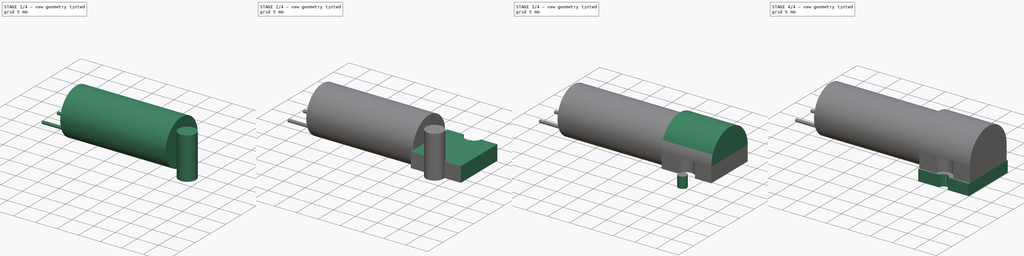
[diagram: build sequence overview — one tinted view per stage of 4, left to right]
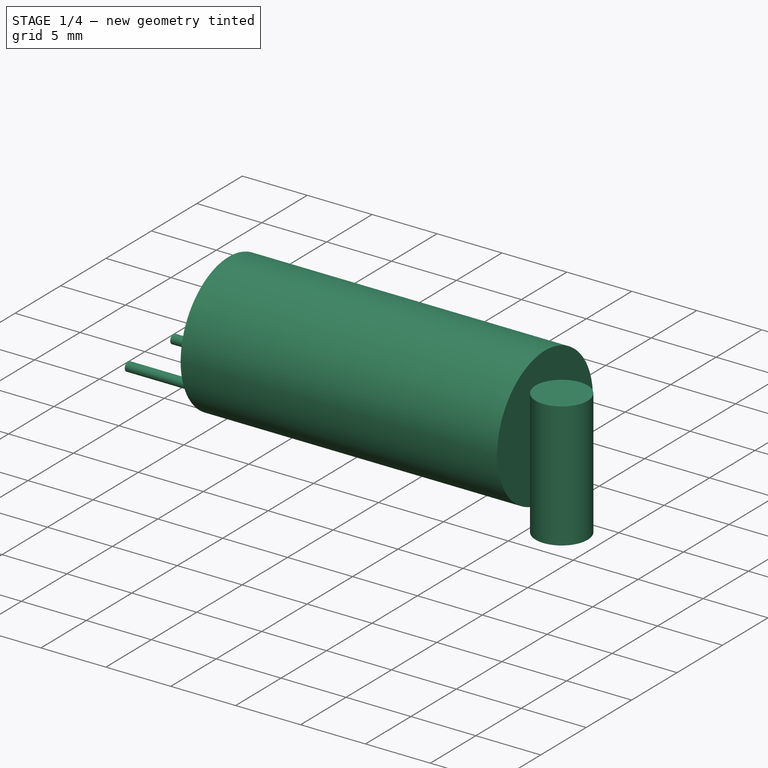
[diagram: stage 1 of 4 — iso view after this stage's code; geometry added in this stage tinted green]
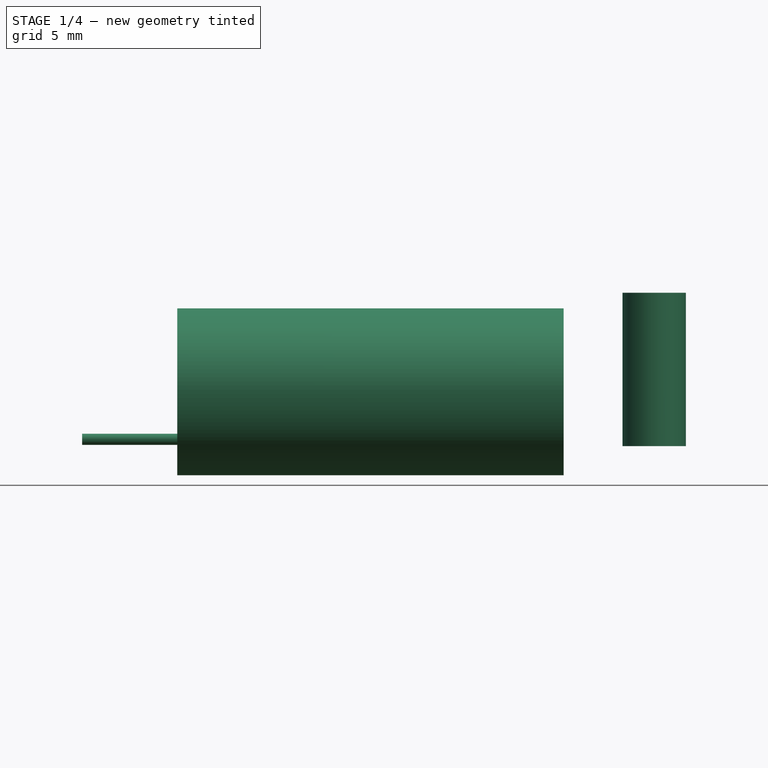
[diagram: stage 1 of 4 — front view after this stage's code; geometry added in this stage tinted green]
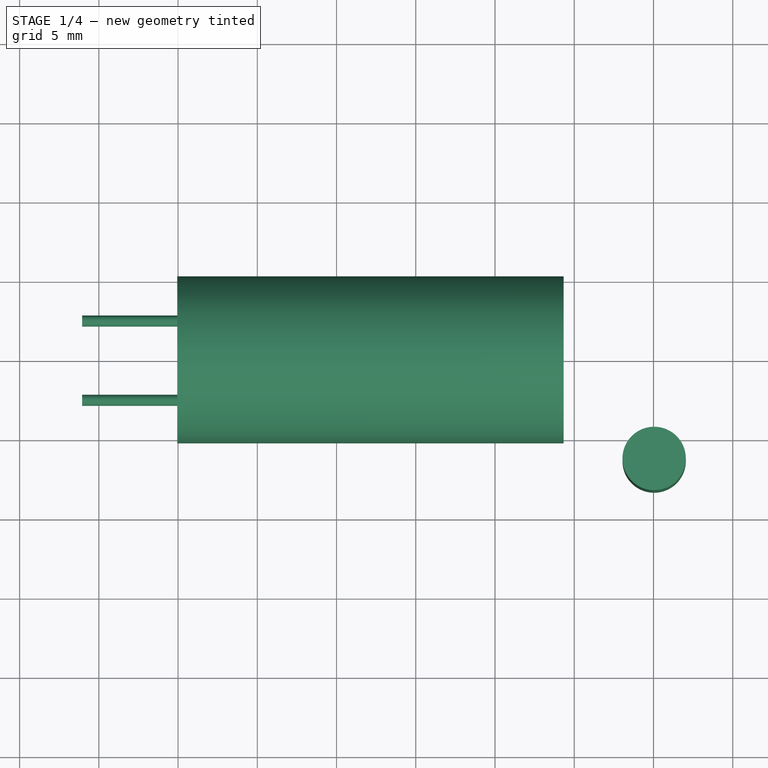
[diagram: stage 1 of 4 — top view after this stage's code; geometry added in this stage tinted green]
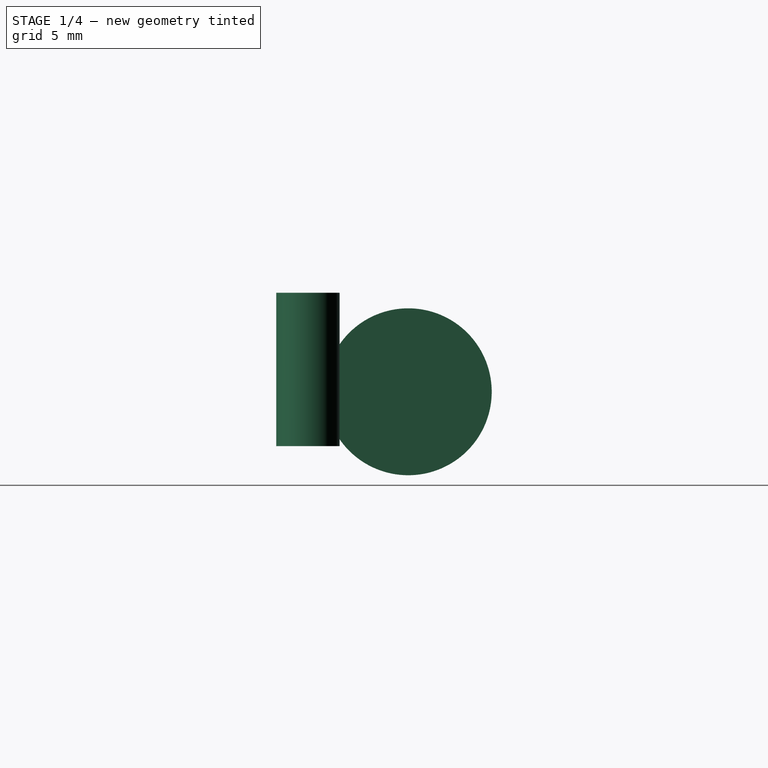
[diagram: stage 1 of 4 — right view after this stage's code; geometry added in this stage tinted green]
FCSTD DOCUMENT  (FreeCAD 0.18R16146 (Git))
Label: valve
Comment: # 2020-08-04 16:29:51: read from <userpath>/repositories/sussex_neuro/Olfactometer/hardware/mechanics/from_raiser_et_al/valve.ipt
License: All rights reserved
LicenseURL: http://en.wikipedia.org/wiki/All_rights_reserved
objects: Sketcher::SketchObject×18, Part::Extrusion×9, Part::Cut×4, Spreadsheet::Sheet×1
note: 31 computed .brp shape members not serialized (recipe doc carries the construction recipe); baked Part::Feature solids carry a one-line shape summary decoded from their .brp

FEATURE [Sketcher::SketchObject] Sketch17
  Placement = pos=(-5.67296,-6.32738,2.54) rot=(0,0,1;0rad)
  sketch-geometry (2):
    g0: ArcOfCircle [constr] CenterX=5.715 CenterY=0 CenterZ=0 NormalX=0 NormalY=0 NormalZ=1 AngleXU=0 Radius=1 StartAngle=2.77613 EndAngle=3.14159
    g1: Circle CenterX=5.715 CenterY=0 CenterZ=0 NormalX=0 NormalY=0 NormalZ=1 AngleXU=0 Radius=2
FEATURE [Sketcher::SketchObject] Sketch17_bp
  Placement = pos=(-5.67296,-6.32738,2.54) rot=(0,0,1;0rad)
  sketch-geometry (1):
    g0: Circle CenterX=5.715 CenterY=0 CenterZ=0 NormalX=0 NormalY=0 NormalZ=1 AngleXU=0 Radius=2
FEATURE [Part::Extrusion] Extrusion10_Cut
  Base = -> Sketch17_bp
  Dir = (0,0,1)
  DirMode = 0
  FaceMakerClass = Part::FaceMakerBullseye
  LengthFwd = 9.68
  LengthRev = 0
  Solid = true
  Symmetric = false
  expr: LengthFwd = Parameters.d46_
  expr: TaperAngle = Parameters.d47_
FEATURE [Sketcher::SketchObject] Sketch18
  Placement = pos=(-5.67296,-6.32738,0) rot=(0,-1,0;1.5708rad)
  sketch-geometry (2):
    g0: ArcOfCircle [constr] CenterX=5.97 CenterY=6.32738 CenterZ=0 NormalX=0 NormalY=0 NormalZ=1 AngleXU=0 Radius=5.97 StartAngle=4.71239 EndAngle=7.85398
    g1: Circle CenterX=5.97 CenterY=6.32738 CenterZ=0 NormalX=0 NormalY=0 NormalZ=1 AngleXU=0 Radius=5.26743
FEATURE [Sketcher::SketchObject] Sketch18_bp
  Placement = pos=(-5.67296,-6.32738,0) rot=(0,-1,0;1.5708rad)
  sketch-geometry (1):
    g0: Circle CenterX=5.97 CenterY=6.32738 CenterZ=0 NormalX=0 NormalY=0 NormalZ=1 AngleXU=0 Radius=5.26743
FEATURE [Part::Extrusion] Extrusion11
  Base = -> Sketch18_bp
  Dir = (-1,0,0)
  DirMode = 0
  FaceMakerClass = Part::FaceMakerBullseye
  LengthFwd = 24.38
  LengthRev = 0
  Solid = true
  Symmetric = false
  expr: LengthFwd = Parameters.d48_
  expr: TaperAngle = Parameters.d49_
FEATURE [Sketcher::SketchObject] Sketch20
  Placement = pos=(-30.053,0,5.97) rot=(0,-1,0;1.5708rad)
  sketch-geometry (4):
    g0: Circle [constr] CenterX=0 CenterY=0 CenterZ=0 NormalX=0 NormalY=0 NormalZ=1 AngleXU=0 Radius=5.26743
    g1: Circle CenterX=-3 CenterY=2.5 CenterZ=0 NormalX=0 NormalY=0 NormalZ=1 AngleXU=0 Radius=0.35
    g2: LineSegment StartX=-10.3331 StartY=-1.1e-15 StartZ=0 EndX=11.6228 EndY=-1.1e-15 EndZ=0
    g3: Circle CenterX=-3 CenterY=-2.5 CenterZ=0 NormalX=0 NormalY=0 NormalZ=1 AngleXU=0 Radius=0.35
  constraints (1):
    c: Horizontal(g2)
FEATURE [Sketcher::SketchObject] Sketch20_bp
  Placement = pos=(-30.053,0,5.97) rot=(0,-1,0;1.5708rad)
  sketch-geometry (2):
    g0: Circle CenterX=-3 CenterY=2.5 CenterZ=0 NormalX=0 NormalY=0 NormalZ=1 AngleXU=0 Radius=0.35
    g1: Circle CenterX=-3 CenterY=-2.5 CenterZ=0 NormalX=0 NormalY=0 NormalZ=1 AngleXU=0 Radius=0.35
FEATURE [Part::Extrusion] Extrusion12
  Base = -> Sketch20_bp
  Dir = (-1,0,0)
  DirMode = 0
  FaceMakerClass = Part::FaceMakerBullseye
  LengthFwd = 6
  LengthRev = 0
  Solid = true
  Symmetric = false
  expr: LengthFwd = Parameters.d53_
  expr: TaperAngle = Parameters.d54_
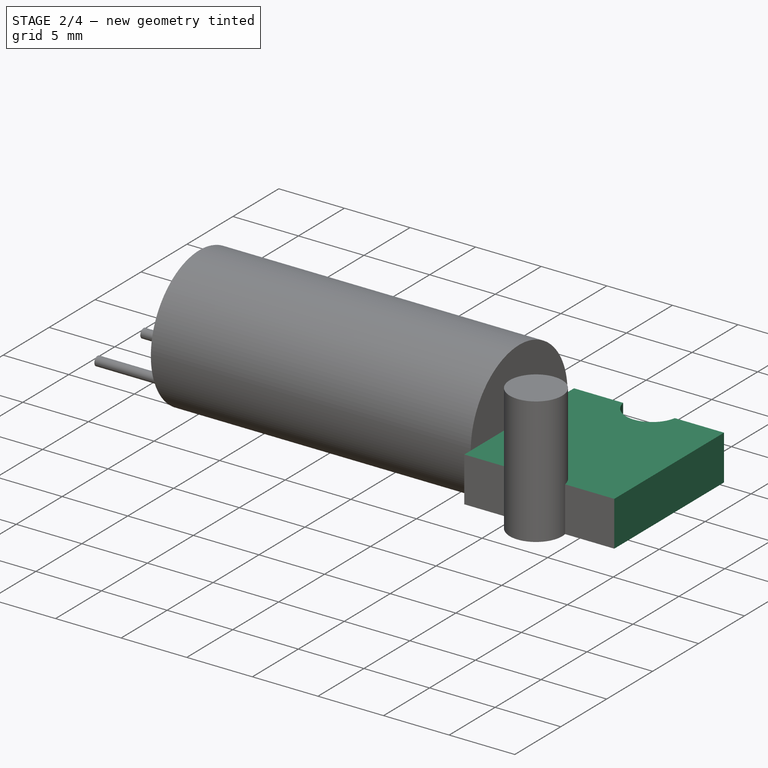
[diagram: stage 2 of 4 — iso view after this stage's code; geometry added in this stage tinted green]
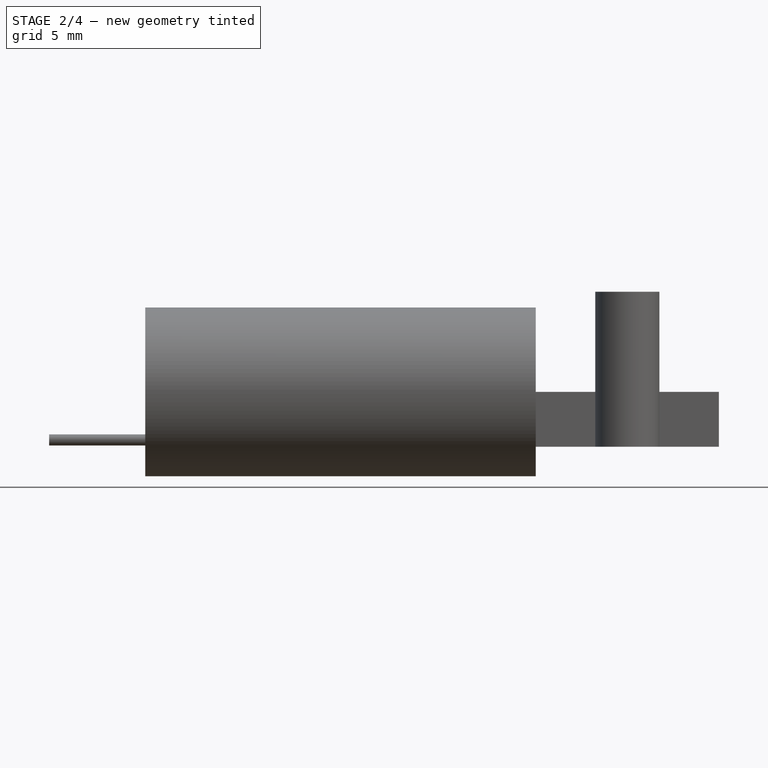
[diagram: stage 2 of 4 — front view after this stage's code; geometry added in this stage tinted green]
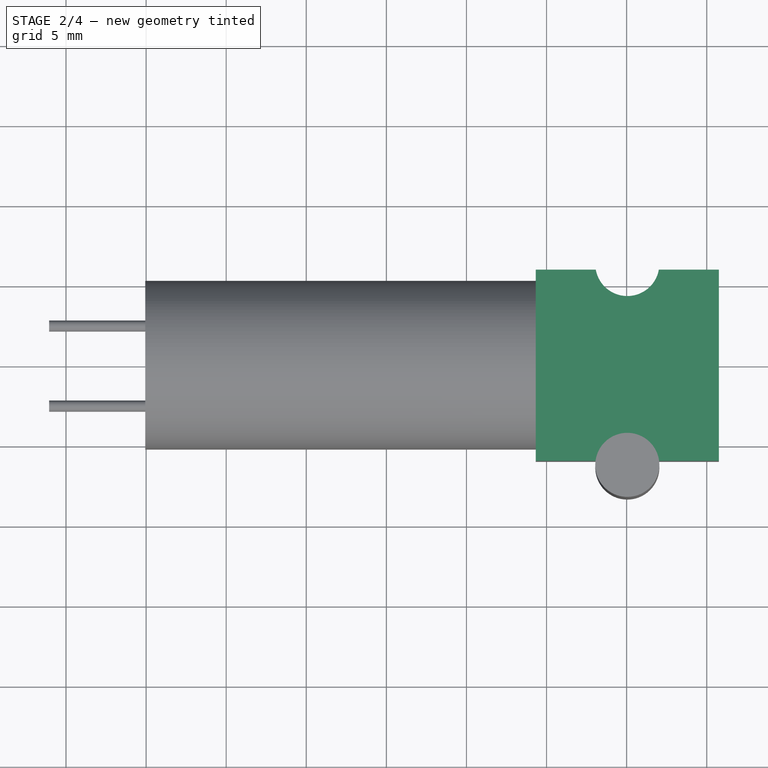
[diagram: stage 2 of 4 — top view after this stage's code; geometry added in this stage tinted green]
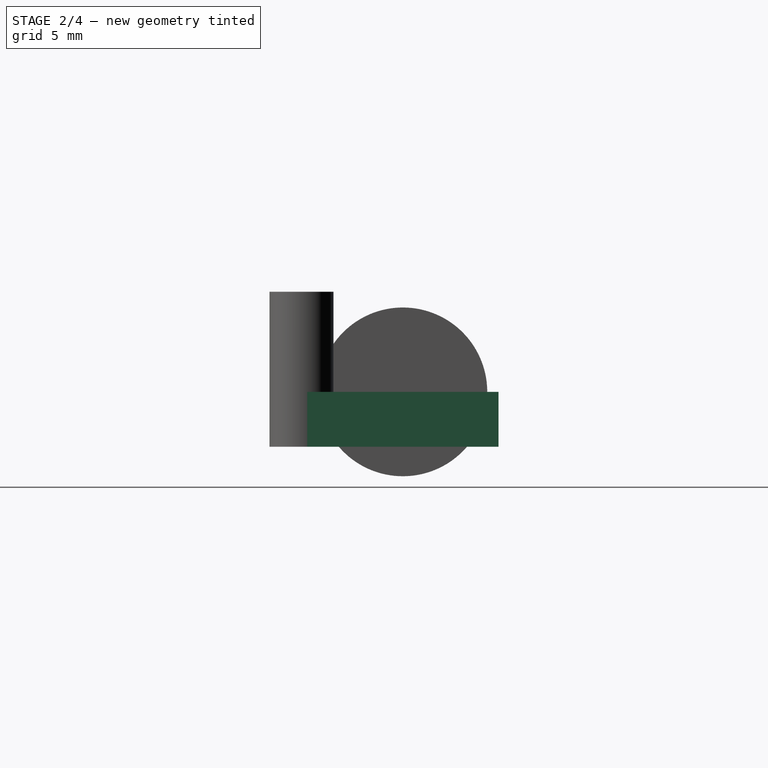
[diagram: stage 2 of 4 — right view after this stage's code; geometry added in this stage tinted green]
FEATURE [Sketcher::SketchObject] Sketch15
  Placement = pos=(-5.67296,-5.97,5.97) rot=(0,1,0;3.14159rad)
  sketch-geometry (4):
    g0: LineSegment StartX=0 StartY=11.94 StartZ=0 EndX=-11.43 EndY=11.94 EndZ=0
    g1: LineSegment StartX=-11.43 StartY=11.94 StartZ=0 EndX=-11.43 EndY=0 EndZ=0
    g2: LineSegment StartX=-11.43 StartY=0 StartZ=0 EndX=0 EndY=0 EndZ=0
    g3: LineSegment StartX=0 StartY=0 StartZ=0 EndX=0 EndY=11.94 EndZ=0
  constraints (2):
    c: Coincident(g-1,g2)
    c: Coincident(g-1,g3)
FEATURE [Sketcher::SketchObject] Sketch15_bp
  Placement = pos=(-5.67296,-5.97,5.97) rot=(0,1,0;3.14159rad)
  sketch-geometry (4):
    g0: LineSegment StartX=0 StartY=11.94 StartZ=0 EndX=-11.43 EndY=11.94 EndZ=0
    g1: LineSegment StartX=-11.43 StartY=11.94 StartZ=0 EndX=-11.43 EndY=0 EndZ=0
    g2: LineSegment StartX=-11.43 StartY=0 StartZ=0 EndX=0 EndY=0 EndZ=0
    g3: LineSegment StartX=0 StartY=0 StartZ=0 EndX=0 EndY=11.94 EndZ=0
FEATURE [Part::Extrusion] Extrusion8
  Base = -> Sketch15_bp
  Dir = (0,0,-1)
  DirMode = 0
  FaceMakerClass = Part::FaceMakerBullseye
  LengthFwd = 3.43
  LengthRev = 0
  Solid = true
  Symmetric = false
  expr: LengthFwd = Parameters.d40_
  expr: TaperAngle = Parameters.d41_
FEATURE [Sketcher::SketchObject] Sketch16
  Placement = pos=(-5.67296,6.32262,2.54) rot=(0,0,1;0rad)
  sketch-geometry (2):
    g0: ArcOfCircle [constr] CenterX=5.715 CenterY=0 CenterZ=0 NormalX=0 NormalY=0 NormalZ=1 AngleXU=0 Radius=1 StartAngle=3.14159 EndAngle=3.50196
    g1: Circle CenterX=5.715 CenterY=0 CenterZ=0 NormalX=0 NormalY=0 NormalZ=1 AngleXU=0 Radius=2
FEATURE [Sketcher::SketchObject] Sketch16_bp
  Placement = pos=(-5.67296,6.32262,2.54) rot=(0,0,1;0rad)
  sketch-geometry (1):
    g0: Circle CenterX=5.715 CenterY=0 CenterZ=0 NormalX=0 NormalY=0 NormalZ=1 AngleXU=0 Radius=2
FEATURE [Part::Extrusion] Extrusion9_Cut
  Base = -> Sketch16_bp
  Dir = (0,0,1)
  DirMode = 0
  FaceMakerClass = Part::FaceMakerBullseye
  LengthFwd = 9.68
  LengthRev = 0
  Solid = true
  Symmetric = false
  expr: LengthFwd = Parameters.d43_
  expr: TaperAngle = Parameters.d44_
FEATURE [Part::Cut] Extrusion9
  Base = -> Extrusion8
  Tool = -> Extrusion9_Cut
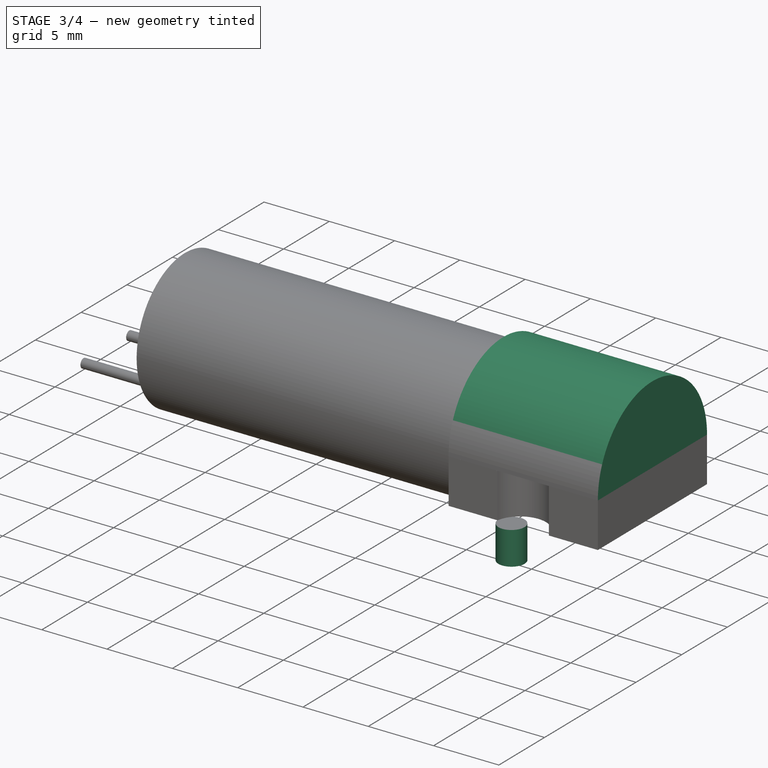
[diagram: stage 3 of 4 — iso view after this stage's code; geometry added in this stage tinted green]
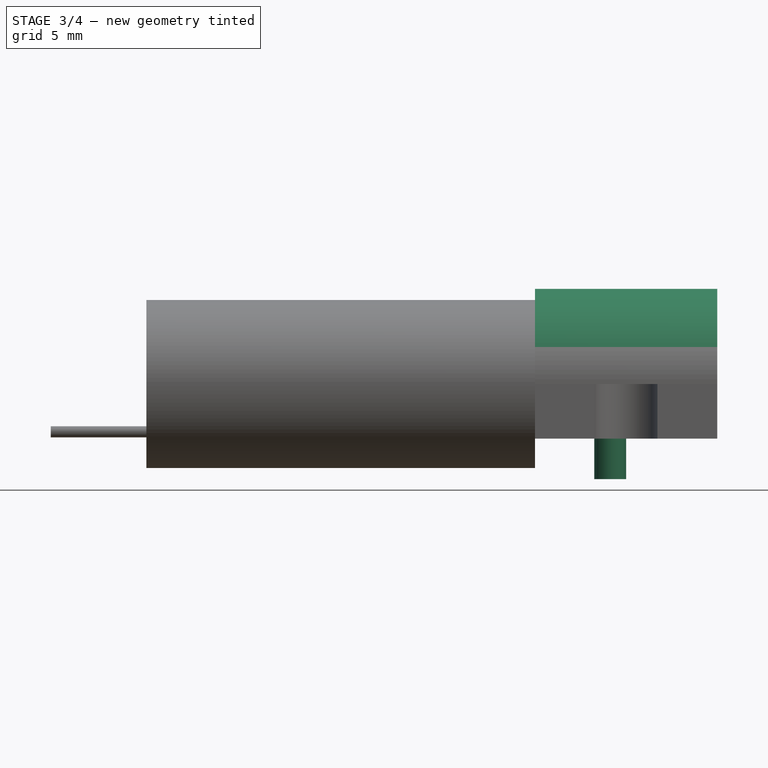
[diagram: stage 3 of 4 — front view after this stage's code; geometry added in this stage tinted green]
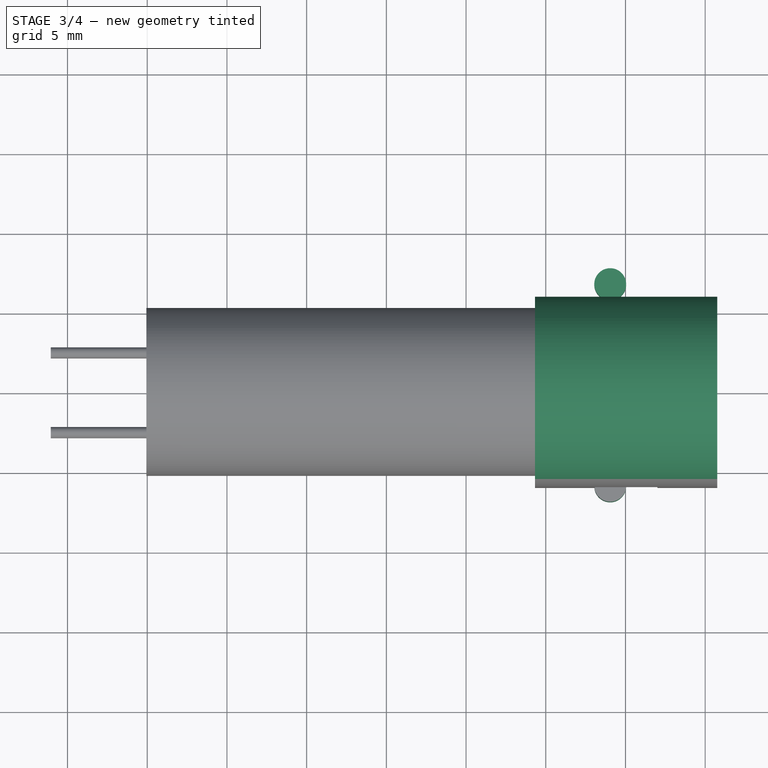
[diagram: stage 3 of 4 — top view after this stage's code; geometry added in this stage tinted green]
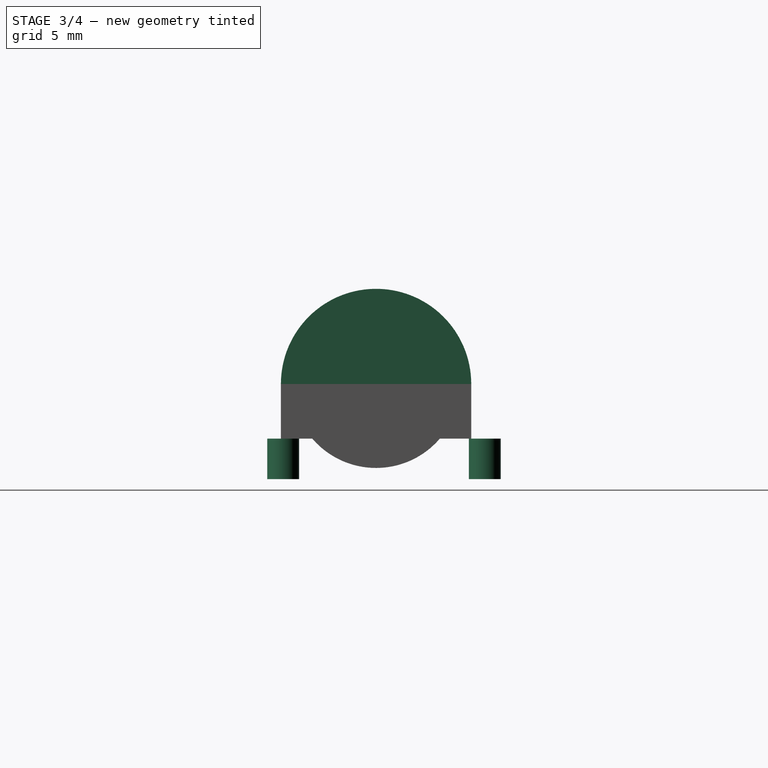
[diagram: stage 3 of 4 — right view after this stage's code; geometry added in this stage tinted green]
FEATURE [Sketcher::SketchObject] Sketch6
  Placement = pos=(0,0,2.54) rot=(0,0,1;0rad)
  sketch-geometry (2):
    g0: LineSegment [constr] StartX=4.75704 StartY=6.82262 StartZ=0 EndX=-6.67296 EndY=6.82262 EndZ=0
    g1: Circle CenterX=-0.957956 CenterY=6.82262 CenterZ=0 NormalX=0 NormalY=0 NormalZ=1 AngleXU=0 Radius=1
  constraints (1):
    c: Radius(g1) = 1  'd24'
FEATURE [Sketcher::SketchObject] Sketch6_bp
  Placement = pos=(0,0,2.54) rot=(0,0,1;0rad)
  sketch-geometry (1):
    g0: Circle CenterX=-0.957956 CenterY=6.82262 CenterZ=0 NormalX=0 NormalY=0 NormalZ=1 AngleXU=0 Radius=1
FEATURE [Part::Extrusion] Extrusion5_Cut
  Base = -> Sketch6_bp
  Dir = (0,0,1)
  DirMode = 0
  FaceMakerClass = Part::FaceMakerBullseye
  LengthFwd = 2.54
  LengthRev = 0
  Reversed = true
  Solid = true
  Symmetric = false
  expr: LengthFwd = Parameters.d25_
  expr: TaperAngle = Parameters.d26_
FEATURE [Sketcher::SketchObject] Sketch7
  Placement = pos=(0,0,2.54) rot=(0,0,1;0rad)
  sketch-geometry (2):
    g0: LineSegment [constr] StartX=-6.67296 StartY=-5.82738 StartZ=0 EndX=4.75704 EndY=-5.82738 EndZ=0
    g1: Circle CenterX=-0.957956 CenterY=-5.82738 CenterZ=0 NormalX=0 NormalY=0 NormalZ=1 AngleXU=0 Radius=1
FEATURE [Sketcher::SketchObject] Sketch7_bp
  Placement = pos=(0,0,2.54) rot=(0,0,1;0rad)
  sketch-geometry (1):
    g0: Circle CenterX=-0.957956 CenterY=-5.82738 CenterZ=0 NormalX=0 NormalY=0 NormalZ=1 AngleXU=0 Radius=1
FEATURE [Part::Extrusion] Extrusion6_Cut
  Base = -> Sketch7_bp
  Dir = (0,0,1)
  DirMode = 0
  FaceMakerClass = Part::FaceMakerBullseye
  LengthFwd = 2.54
  LengthRev = 0
  Reversed = true
  Solid = true
  Symmetric = false
  expr: LengthFwd = Parameters.d28_
  expr: TaperAngle = Parameters.d29_
FEATURE [Sketcher::SketchObject] Sketch14
  Placement = pos=(-5.67296,-6.32738,0) rot=(0,-1,0;1.5708rad)
  expr: Constraints.d37 = Parameters.d37_
  sketch-geometry (2):
    g0: ArcOfCircle CenterX=5.97 CenterY=6.32738 CenterZ=0 NormalX=0 NormalY=0 NormalZ=1 AngleXU=0 Radius=5.97 StartAngle=4.71239 EndAngle=7.85398
    g1: LineSegment StartX=5.97 StartY=12.2974 StartZ=0 EndX=5.97 EndY=0.35738 EndZ=0
  constraints (2):
    c: Vertical(g1)
    c: Radius(g0) = 5.97  'd37'
FEATURE [Sketcher::SketchObject] Sketch14_bp
  Placement = pos=(-5.67296,-6.32738,0) rot=(0,-1,0;1.5708rad)
  sketch-geometry (2):
    g0: ArcOfCircle CenterX=5.97 CenterY=6.32738 CenterZ=0 NormalX=0 NormalY=0 NormalZ=1 AngleXU=0 Radius=5.97 StartAngle=4.71239 EndAngle=7.85398
    g1: LineSegment StartX=5.97 StartY=12.2974 StartZ=0 EndX=5.97 EndY=0.35738 EndZ=0
FEATURE [Part::Extrusion] Extrusion7
  Base = -> Sketch14_bp
  Dir = (-1,0,0)
  DirMode = 0
  FaceMakerClass = Part::FaceMakerBullseye
  LengthFwd = 11.43
  LengthRev = 0
  Reversed = true
  Solid = true
  Symmetric = false
  expr: LengthFwd = Parameters.d38_
  expr: TaperAngle = Parameters.d39_
FEATURE [Part::Cut] Extrusion10
  Base = -> Extrusion9
  Tool = -> Extrusion10_Cut
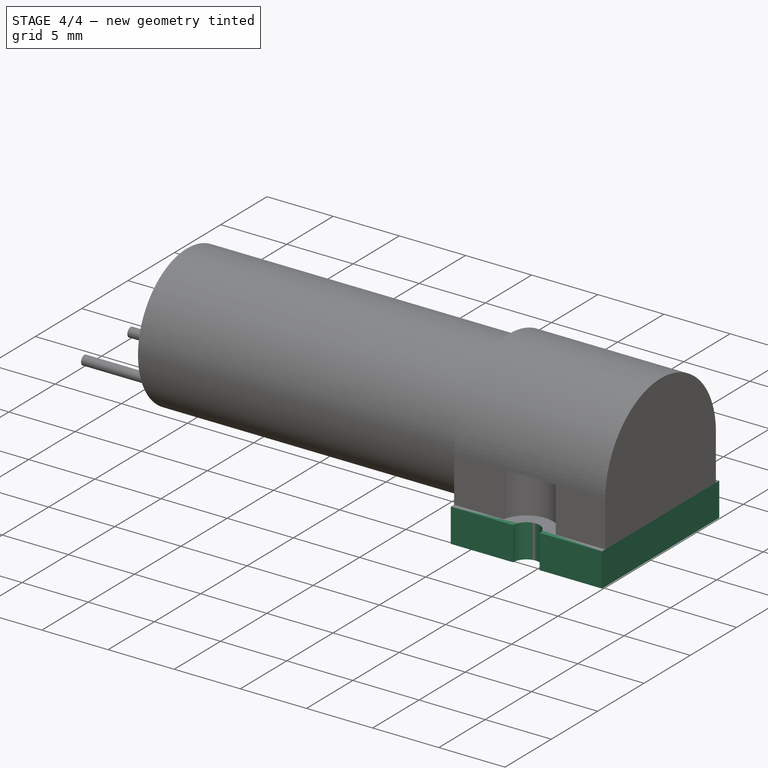
[diagram: stage 4 of 4 — iso view after this stage's code; geometry added in this stage tinted green]
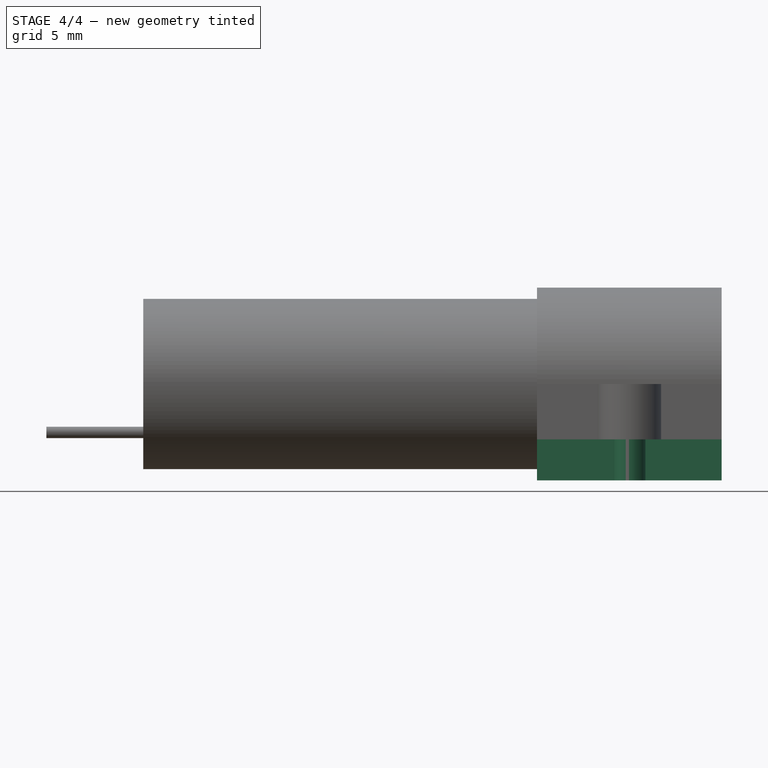
[diagram: stage 4 of 4 — front view after this stage's code; geometry added in this stage tinted green]
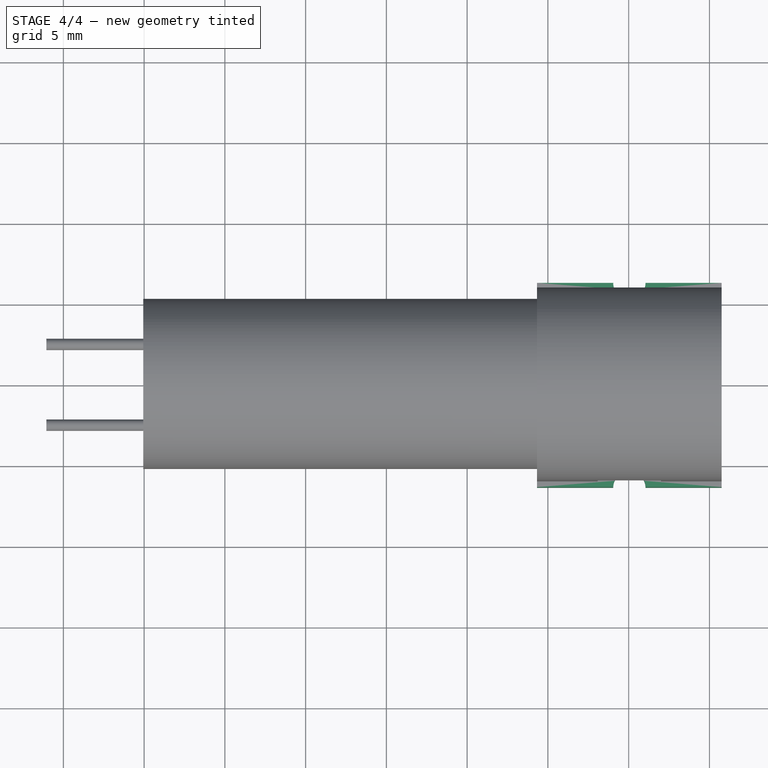
[diagram: stage 4 of 4 — top view after this stage's code; geometry added in this stage tinted green]
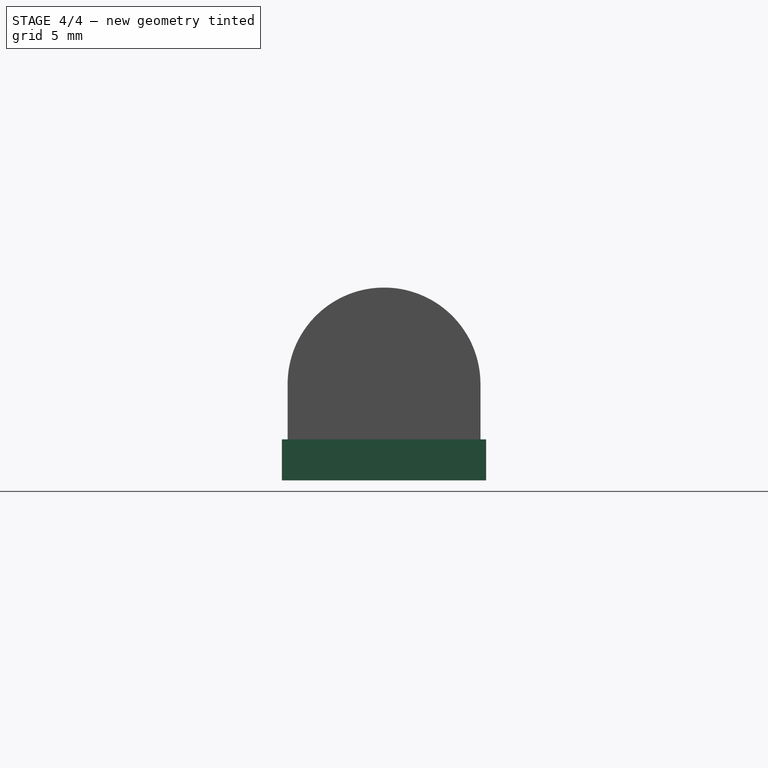
[diagram: stage 4 of 4 — right view after this stage's code; geometry added in this stage tinted green]
FEATURE [Spreadsheet::Sheet] Parameters
  cells = A1=Parameter; B1=Value; C1=Fromula; D1=Tolerance; E1=Comment; A2=d15; B2(d15_)=11.43; C2=11.43mm; D2=NOMINAL; A3=d16; B3(d16_)=12.65; C3=12.65mm; D3=NOMINAL; A4=d17; B4(d17_)=1.52; C4=1.52mm; D4=NOMINAL; A5=d18; B5(d18_)=1.52; C5=1.52mm; D5=NOMINAL; A6=d19; B6(d19_)=1.52; C6=1.52mm; D6=NOMINAL; A7=d20; B7(d20_)=3.180000000000001; C7=3.18mm; D7=NOMINAL; A8=d21; B8(d21_)=3.180000000000001; C8=3.18mm; D8=NOMINAL; A9=d22; B9(d22_)=2.54; C9=2.54mm; D9=NOMINAL; A10=d23; B10(d23_)=0; C10=0°; D10=NOMINAL; A11=d24; B11(d24_)=2; C11=2mm; D11=NOMINAL; A12=d25; B12(d25_)=2.54; C12=2.54mm; D12=NOMINAL; A13=d26; B13(d26_)=0; C13=0°; D13=NOMINAL; A14=d27; B14(d27_)=2; C14=2mm; D14=NOMINAL; A15=d28; B15(d28_)=2.54; C15=2.54mm; D15=NOMINAL; A16=d29; B16(d29_)=0; C16=0°; D16=NOMINAL; A17=d32; B17(d32_)=1; C17=1mm; D17=NOMINAL; A18=d33; B18(d33_)==-0.5; C18=-0.5mm; D18=NOMINAL; A19=d34; B19(d34_)=0; C19=0mm; D19=NOMINAL; A20=d37; B20(d37_)=5.969999999999998; C20=5.97mm; D20=NOMINAL; A21=d38; B21(d38_)=11.43; C21=11.43mm; D21=NOMINAL; A22=d39; B22(d39_)=0; C22=0°; D22=NOMINAL; A23=d40; B23(d40_)=3.43; C23=3.43mm; D23=NOMINAL; A24=d41; B24(d41_)=0; C24=0°; D24=NOMINAL; A25=d42; B25(d42_)=4; C25=4mm; D25=NOMINAL; A26=d43; B26(d43_)=9.68; C26=9.68mm; D26=NOMINAL; A27=d44; B27(d44_)=0; C27=0°; D27=NOMINAL; A28=d45; B28(d45_)=4; C28=4mm; D28=NOMINAL; A29=d46; B29(d46_)=9.68; C29=9.68mm; D29=NOMINAL; A30=d47; B30(d47_)=0; C30=0°; D30=NOMINAL; A31=d48; B31(d48_)=24.38; C31=24.38mm; D31=NOMINAL; A32=d49; B32(d49_)=0; C32=0°; D32=NOMINAL; A33=d50; B33(d50_)=2.5; C33=2.5mm; D33=NOMINAL; A34=d51; B34(d51_)=3; C34=3mm; D34=NOMINAL; A35=d52; B35(d52_)=0.6999999999999998; C35=0.7mm; D35=NOMINAL; A36=d53; B36(d53_)=6.000000000000001; C36=6mm; D36=NOMINAL; A37=d54; B37(d54_)=0; C37=0°; D37=NOMINAL; A38=d55; B38(d55_)=0.2; C38=0.2mm; D38=NOMINAL
FEATURE [Sketcher::SketchObject] Sketch5
  sketch-geometry (7):
    g0: LineSegment StartX=4.75704 StartY=-5.82738 StartZ=0 EndX=-6.67296 EndY=-5.82738 EndZ=0
    g1: LineSegment StartX=-6.67296 StartY=-5.82738 StartZ=0 EndX=-6.67296 EndY=6.82262 EndZ=0
    g2: LineSegment StartX=-6.67296 StartY=6.82262 StartZ=0 EndX=4.75704 EndY=6.82262 EndZ=0
    g3: LineSegment StartX=4.75704 StartY=6.82262 StartZ=0 EndX=4.75704 EndY=-5.82738 EndZ=0
    g4: Circle CenterX=-0.957956 CenterY=0.49762 CenterZ=0 NormalX=0 NormalY=0 NormalZ=1 AngleXU=0 Radius=0.76
    g5: Circle CenterX=2.22204 CenterY=0.49762 CenterZ=0 NormalX=0 NormalY=0 NormalZ=1 AngleXU=0 Radius=0.76
    g6: Circle CenterX=-4.13796 CenterY=0.49762 CenterZ=0 NormalX=0 NormalY=0 NormalZ=1 AngleXU=0 Radius=0.76
  constraints (7):
    c: Perpendicular(g0,g1)
    c: Parallel(g0,g2)
    c: Parallel(g1,g3)
    c: Horizontal(g0)
    c: Radius(g4) = 0.76  'd17'
    c: Radius(g5) = 0.76  'd18'
    c: Radius(g6) = 0.76  'd19'
FEATURE [Sketcher::SketchObject] Sketch5_bp
  sketch-geometry (7):
    g0: LineSegment StartX=4.75704 StartY=-5.82738 StartZ=0 EndX=-6.67296 EndY=-5.82738 EndZ=0
    g1: LineSegment StartX=-6.67296 StartY=-5.82738 StartZ=0 EndX=-6.67296 EndY=6.82262 EndZ=0
    g2: LineSegment StartX=-6.67296 StartY=6.82262 StartZ=0 EndX=4.75704 EndY=6.82262 EndZ=0
    g3: LineSegment StartX=4.75704 StartY=6.82262 StartZ=0 EndX=4.75704 EndY=-5.82738 EndZ=0
    g4: Circle CenterX=-0.957956 CenterY=0.49762 CenterZ=0 NormalX=0 NormalY=0 NormalZ=1 AngleXU=0 Radius=0.76
    g5: Circle CenterX=2.22204 CenterY=0.49762 CenterZ=0 NormalX=0 NormalY=0 NormalZ=1 AngleXU=0 Radius=0.76
    g6: Circle CenterX=-4.13796 CenterY=0.49762 CenterZ=0 NormalX=0 NormalY=0 NormalZ=1 AngleXU=0 Radius=0.76
FEATURE [Part::Extrusion] Extrusion4
  Base = -> Sketch5_bp
  Dir = (0,0,1)
  DirMode = 0
  FaceMakerClass = Part::FaceMakerBullseye
  LengthFwd = 2.54
  LengthRev = 0
  Solid = true
  Symmetric = false
  expr: LengthFwd = Parameters.d22_
  expr: TaperAngle = Parameters.d23_
FEATURE [Part::Cut] Extrusion5
  Base = -> Extrusion4
  Tool = -> Extrusion5_Cut
FEATURE [Part::Cut] Extrusion6
  Base = -> Extrusion5
  Placement = pos=(1,-0.5,0) rot=(0,0,1;0rad)
  Tool = -> Extrusion6_Cut
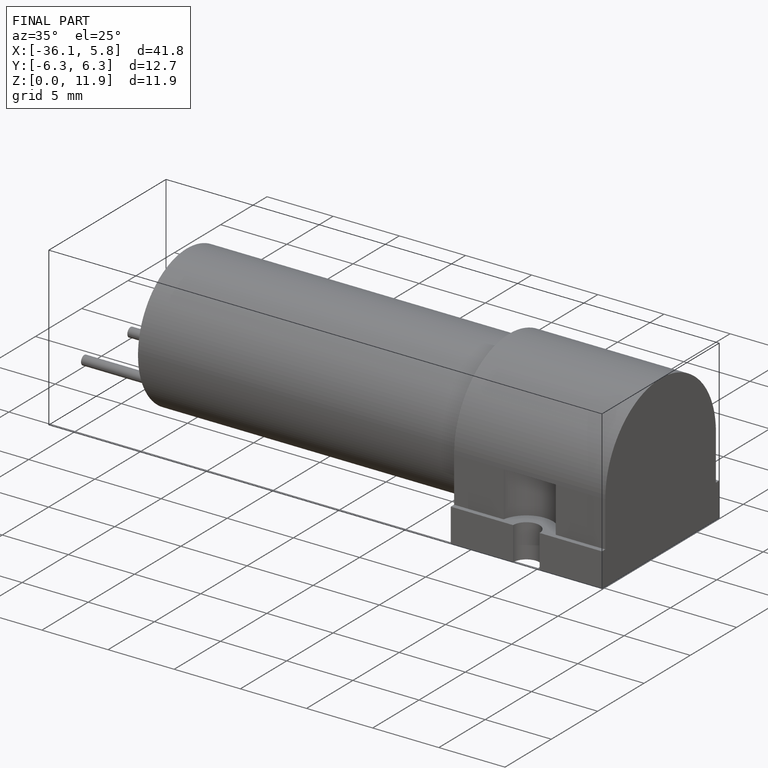
[diagram: finished part — iso view with bounding-box wireframe]
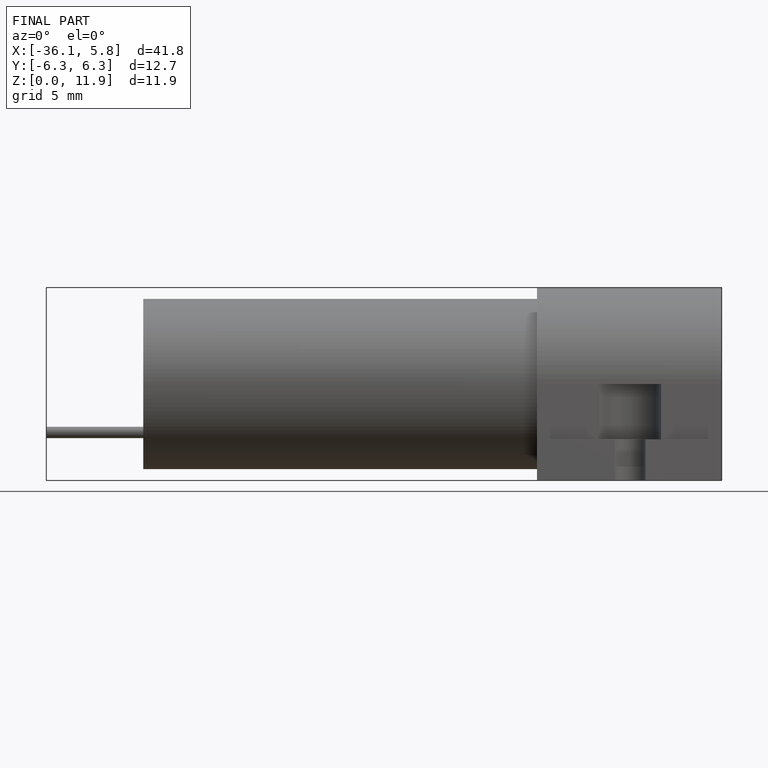
[diagram: finished part — front view with bounding-box wireframe]
